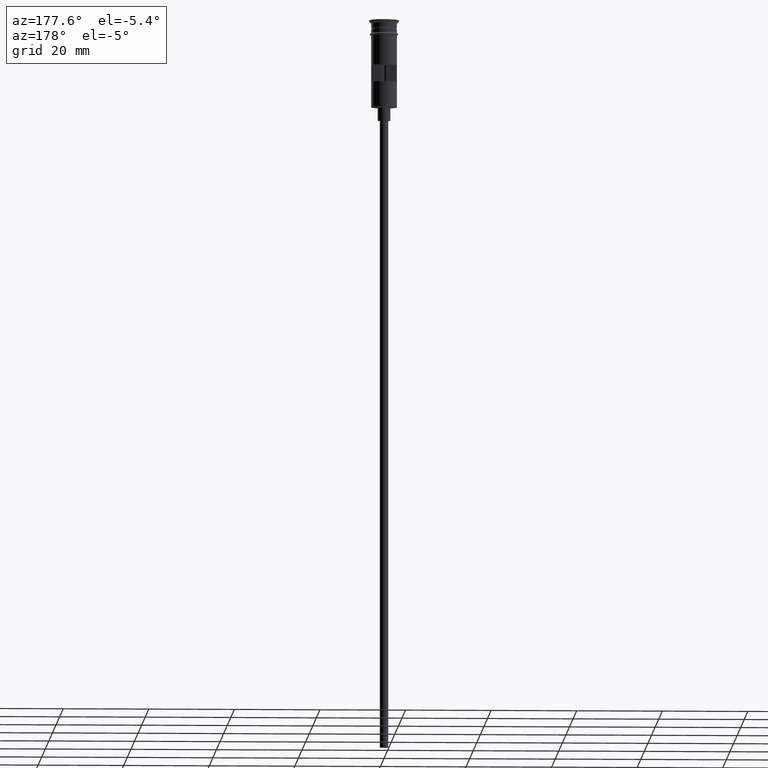
[diagram: clean part render]
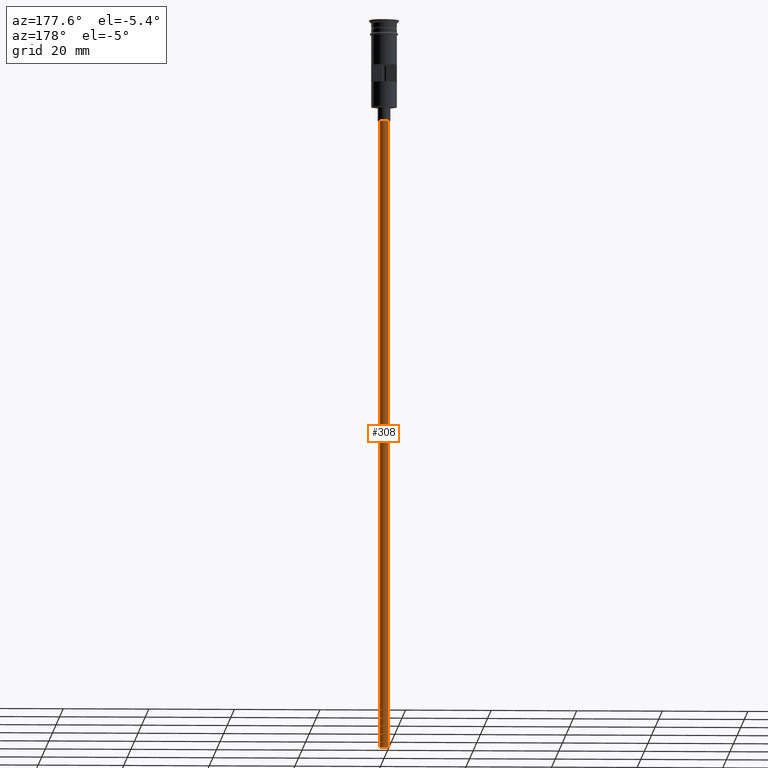
[diagram: same view with one face highlighted and labeled with its STEP entity id]
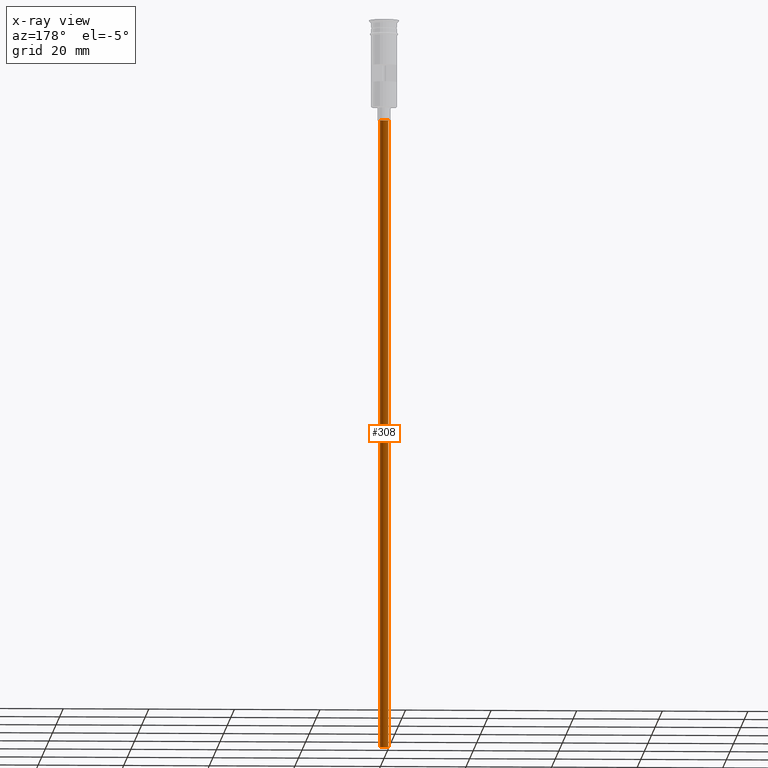
[diagram: x-ray of the same camera — body ghosted, the highlighted face saturated]
A machine part, auxiliary view. The second image highlights one B-rep face of the part: STEP entity #308.
The next image is the same camera in x-ray: the body ghosted, the highlighted face saturated — about 0% of this face is hidden behind the body in this view.
In plain terms, the highlighted cylindrical surface (edge-blend (fillet) strip) has radius 1 mm, axis along (-0, -0, 1).
Its self-contained STEP definition (entity closure, byte-faithful):
#21 = DIRECTION ( 'NONE',  ( 0.000000000000000000, 0.000000000000000000, -1.000000000000000000 ) ) ;
#30 = CARTESIAN_POINT ( 'NONE',  ( -0.9999999999999997780, 1.224646799147352961E-16, -23.50000000000000000 ) ) ;
#50 = DIRECTION ( 'NONE',  ( 0.000000000000000000, 0.000000000000000000, -1.000000000000000000 ) ) ;
#62 = CIRCLE ( 'NONE', #819, 0.9999999999999997780 ) ;
#129 = CARTESIAN_POINT ( 'NONE',  ( -0.9999999999999997780, 1.224646799147352961E-16, -170.4999999999999716 ) ) ;
#163 = CIRCLE ( 'NONE', #1132, 0.9999999999999997780 ) ;
#299 = CARTESIAN_POINT ( 'NONE',  ( 0.000000000000000000, 0.000000000000000000, -170.4999999999999716 ) ) ;
#308 = ADVANCED_FACE ( 'NONE', ( #1560 ), #1196, .T. ) ;
#417 = CARTESIAN_POINT ( 'NONE',  ( 0.000000000000000000, 0.000000000000000000, -170.4999999999999716 ) ) ;
#418 = EDGE_CURVE ( 'NONE', #1022, #1524, #163, .T. ) ;
#441 = EDGE_LOOP ( 'NONE', ( #1285, #461, #1300, #1049 ) ) ;
#461 = ORIENTED_EDGE ( 'NONE', *, *, #986, .T. ) ;
#462 = LINE ( 'NONE', #716, #1386 ) ;
#495 = AXIS2_PLACEMENT_3D ( 'NONE', #417, #809, #1161 ) ;
#520 = CARTESIAN_POINT ( 'NONE',  ( 0.000000000000000000, 0.000000000000000000, -23.50000000000000000 ) ) ;
#630 = VECTOR ( 'NONE', #1455, 1000.000000000000000 ) ;
#640 = DIRECTION ( 'NONE',  ( -1.000000000000000000, 0.000000000000000000, 0.000000000000000000 ) ) ;
#665 = EDGE_CURVE ( 'NONE', #715, #1428, #62, .T. ) ;
#715 = VERTEX_POINT ( 'NONE', #30 ) ;
#716 = CARTESIAN_POINT ( 'NONE',  ( 0.9999999999999997780, 0.000000000000000000, -170.4999999999999716 ) ) ;
#721 = CARTESIAN_POINT ( 'NONE',  ( -0.9999999999999997780, 1.224646799147352961E-16, -170.4999999999999716 ) ) ;
#799 = DIRECTION ( 'NONE',  ( -1.000000000000000000, 0.000000000000000000, 0.000000000000000000 ) ) ;
#809 = DIRECTION ( 'NONE',  ( -0.000000000000000000, -0.000000000000000000, 1.000000000000000000 ) ) ;
#819 = AXIS2_PLACEMENT_3D ( 'NONE', #520, #21, #640 ) ;
#853 = LINE ( 'NONE', #721, #630 ) ;
#962 = EDGE_CURVE ( 'NONE', #1524, #1428, #462, .T. ) ;
#986 = EDGE_CURVE ( 'NONE', #1022, #715, #853, .T. ) ;
#1022 = VERTEX_POINT ( 'NONE', #129 ) ;
#1049 = ORIENTED_EDGE ( 'NONE', *, *, #962, .F. ) ;
#1132 = AXIS2_PLACEMENT_3D ( 'NONE', #299, #50, #799 ) ;
#1139 = CARTESIAN_POINT ( 'NONE',  ( 0.9999999999999997780, 0.000000000000000000, -170.4999999999999716 ) ) ;
#1161 = DIRECTION ( 'NONE',  ( 1.000000000000000000, 0.000000000000000000, 0.000000000000000000 ) ) ;
#1196 = CYLINDRICAL_SURFACE ( 'NONE', #495, 0.9999999999999997780 ) ;
#1285 = ORIENTED_EDGE ( 'NONE', *, *, #418, .F. ) ;
#1300 = ORIENTED_EDGE ( 'NONE', *, *, #665, .T. ) ;
#1332 = DIRECTION ( 'NONE',  ( -0.000000000000000000, -0.000000000000000000, 1.000000000000000000 ) ) ;
#1353 = CARTESIAN_POINT ( 'NONE',  ( 0.9999999999999997780, 0.000000000000000000, -23.50000000000000000 ) ) ;
#1386 = VECTOR ( 'NONE', #1332, 1000.000000000000000 ) ;
#1428 = VERTEX_POINT ( 'NONE', #1353 ) ;
#1455 = DIRECTION ( 'NONE',  ( -0.000000000000000000, -0.000000000000000000, 1.000000000000000000 ) ) ;
#1524 = VERTEX_POINT ( 'NONE', #1139 ) ;
#1560 = FACE_OUTER_BOUND ( 'NONE', #441, .T. ) ;